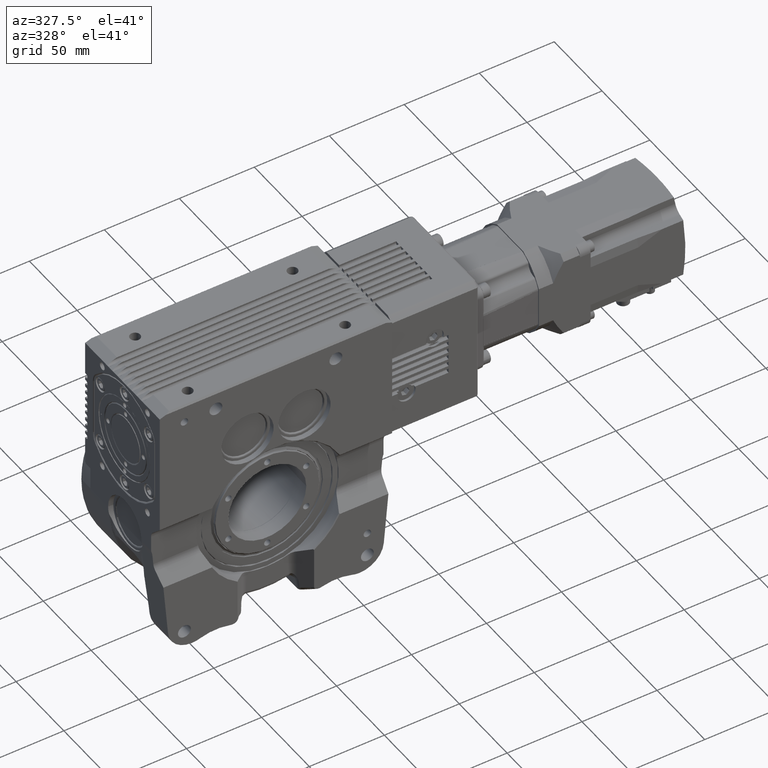
[diagram: clean part render]
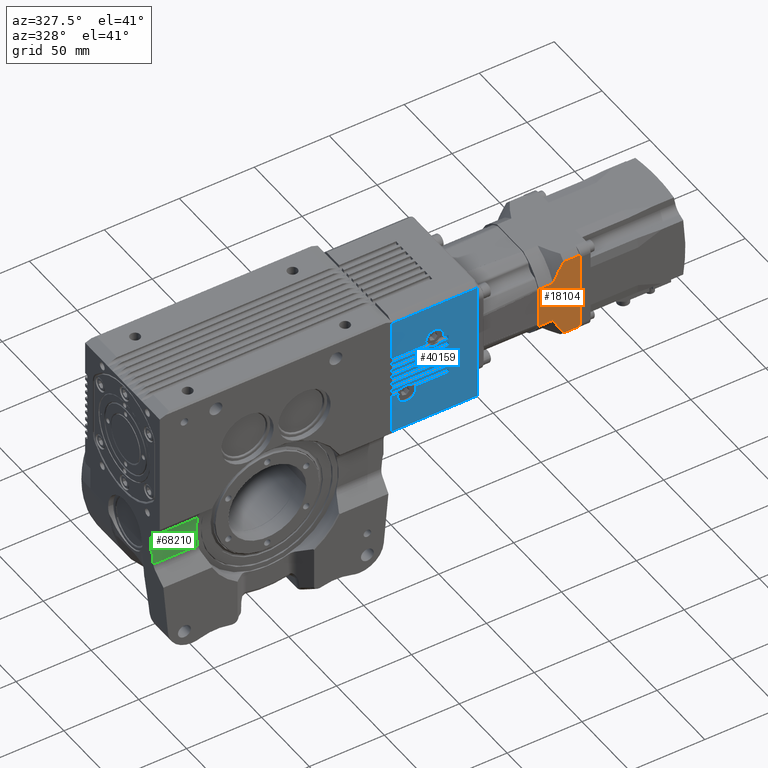
[diagram: same view with three faces highlighted in distinct colors, each labeled with its STEP entity id]
A machine part, auxiliary view with three faces highlighted in distinct colors.
Their STEP definitions:

[orange] entity #18104 — the highlighted planar face has unit normal (0, 1, 0).
#1133 = ORIENTED_EDGE ( 'NONE', *, *, #26673, .F. ) ;
#2421 = CARTESIAN_POINT ( 'NONE',  ( -30.00000000000002132, -25.94822115080963698, -71.33549079599345077 ) ) ;
#3106 = CARTESIAN_POINT ( 'NONE',  ( -30.00000000000001776, -26.45751311064589117, -36.00000000000001421 ) ) ;
#3815 = CARTESIAN_POINT ( 'NONE',  ( -30.00000000000002132, -18.15558045679548371, -55.52238291668759018 ) ) ;
#7841 = CARTESIAN_POINT ( 'NONE',  ( -30.00000000000001776, 1.040834085586084257E-14, -71.50000000000002842 ) ) ;
#8135 = VERTEX_POINT ( 'NONE', #29752 ) ;
#8191 = CARTESIAN_POINT ( 'NONE',  ( -30.00000000000002842, -26.20227501835695705, -71.16882412932679358 ) ) ;
#8363 = LINE ( 'NONE', #65437, #53653 ) ;
#9937 = CARTESIAN_POINT ( 'NONE',  ( -30.00000000000001776, -29.99999999999998934, -44.00000000000000000 ) ) ;
#12159 = CARTESIAN_POINT ( 'NONE',  ( -30.00000000000001776, -13.74772708486742090, -53.50000000000000000 ) ) ;
#12429 = ORIENTED_EDGE ( 'NONE', *, *, #13323, .F. ) ;
#12551 = CARTESIAN_POINT ( 'NONE',  ( -30.00000000000001776, -13.74772708486742090, -44.00000000000000000 ) ) ;
#12579 = CARTESIAN_POINT ( 'NONE',  ( -30.00000000000001776, -26.45751311064589117, -60.50000000000000000 ) ) ;
#12589 = FACE_OUTER_BOUND ( 'NONE', #17058, .T. ) ;
#12682 = VERTEX_POINT ( 'NONE', #35809 ) ;
#13323 = EDGE_CURVE ( 'NONE', #78190, #59667, #59394, .T. ) ;
#14143 = EDGE_CURVE ( 'NONE', #12682, #61910, #64954, .T. ) ;
#14295 = CARTESIAN_POINT ( 'NONE',  ( -30.00000000000002132, -26.45751311064588407, -71.00000000000002842 ) ) ;
#14460 = ORIENTED_EDGE ( 'NONE', *, *, #31605, .F. ) ;
#15219 = ORIENTED_EDGE ( 'NONE', *, *, #50109, .F. ) ;
#17058 = EDGE_LOOP ( 'NONE', ( #12429, #80618, #64923, #54620, #15219, #1133, #14460, #50104, #39897, #53083 ) ) ;
#17101 = VECTOR ( 'NONE', #72103, 1000.000000000000000 ) ;
#17258 = CARTESIAN_POINT ( 'NONE',  ( -30.00000000000002842, 26.20227501835697481, -71.16882412932677937 ) ) ;
#18104 = ADVANCED_FACE ( 'NONE', ( #12589 ), #37646, .F. ) ;
#19742 = VECTOR ( 'NONE', #34983, 1000.000000000000000 ) ;
#21048 = DIRECTION ( 'NONE',  ( -0.000000000000000000, -0.000000000000000000, 1.000000000000000000 ) ) ;
#21459 = EDGE_CURVE ( 'NONE', #56466, #21657, #35988, .T. ) ;
#21657 = VERTEX_POINT ( 'NONE', #12159 ) ;
#22382 = EDGE_CURVE ( 'NONE', #56934, #56466, #41149, .T. ) ;
#23104 = B_SPLINE_CURVE_WITH_KNOTS ( 'NONE', 3,
 ( #69049, #37003, #17258, #67831 ),
 .UNSPECIFIED., .F., .F.,
 ( 4, 4 ),
 ( 0.000000000000000000, 1.000000000000000000 ),
 .UNSPECIFIED. ) ;
#23274 = CARTESIAN_POINT ( 'NONE',  ( -30.00000000000001776, -29.99999999999998934, -36.00000000000001421 ) ) ;
#24701 = CARTESIAN_POINT ( 'NONE',  ( -30.00000000000001421, -25.69533031505918075, -71.50000000000001421 ) ) ;
#26511 = DIRECTION ( 'NONE',  ( 1.000000000000000000, -0.000000000000000000, 0.000000000000000000 ) ) ;
#26673 = EDGE_CURVE ( 'NONE', #72336, #8135, #45202, .T. ) ;
#28845 = CARTESIAN_POINT ( 'NONE',  ( -30.00000000000001421, -22.37609475627537137, -57.88491433695852351 ) ) ;
#28851 = CARTESIAN_POINT ( 'NONE',  ( -30.00000000000001776, 26.45751311064591604, -36.00000000000001421 ) ) ;
#29706 = CARTESIAN_POINT ( 'NONE',  ( -30.00000000000001776, 26.45751311064591249, -60.50000000000000000 ) ) ;
#29752 = CARTESIAN_POINT ( 'NONE',  ( -30.00000000000001776, 13.74772708486744399, -53.50000000000000000 ) ) ;
#31605 = EDGE_CURVE ( 'NONE', #79259, #72336, #60922, .T. ) ;
#33217 = B_SPLINE_CURVE_WITH_KNOTS ( 'NONE', 3,
 ( #14295, #8191, #2421, #24701 ),
 .UNSPECIFIED., .F., .F.,
 ( 4, 4 ),
 ( 0.000000000000000000, 1.000000000000000000 ),
 .UNSPECIFIED. ) ;
#34115 = CARTESIAN_POINT ( 'NONE',  ( -30.00000000000002132, 24.43386382049441607, -59.16148180936169609 ) ) ;
#34983 = DIRECTION ( 'NONE',  ( -0.000000000000000000, -1.000000000000000000, -0.000000000000000000 ) ) ;
#35015 = CARTESIAN_POINT ( 'NONE',  ( -30.00000000000001776, -13.74772708486742090, -53.50000000000000000 ) ) ;
#35593 = CARTESIAN_POINT ( 'NONE',  ( -30.00000000000001776, -13.74772708486742623, -36.00000000000001421 ) ) ;
#35809 = CARTESIAN_POINT ( 'NONE',  ( -30.00000000000001421, -25.69533031505918075, -71.50000000000001421 ) ) ;
#35988 = LINE ( 'NONE', #35593, #56767 ) ;
#37003 = CARTESIAN_POINT ( 'NONE',  ( -30.00000000000002487, 25.94822115080965830, -71.33549079599345077 ) ) ;
#37353 = EDGE_CURVE ( 'NONE', #21657, #78190, #38780, .T. ) ;
#37646 = PLANE ( 'NONE',  #50699 ) ;
#38530 = CARTESIAN_POINT ( 'NONE',  ( -30.00000000000001776, 13.74772708486744044, -44.00000000000000000 ) ) ;
#38780 = B_SPLINE_CURVE_WITH_KNOTS ( 'NONE', 3,
 ( #35015, #60100, #3815, #28845, #53946, #47772 ),
 .UNSPECIFIED., .F., .F.,
 ( 4, 2, 4 ),
 ( 1.110764993427085326E-17, 0.007254975203628777347, 0.01450995040725754255 ),
 .UNSPECIFIED. ) ;
#39897 = ORIENTED_EDGE ( 'NONE', *, *, #14143, .F. ) ;
#40282 = CARTESIAN_POINT ( 'NONE',  ( -30.00000000000002132, 15.99333331272853975, -54.43551459274888060 ) ) ;
#41149 = LINE ( 'NONE', #9937, #19742 ) ;
#45202 = B_SPLINE_CURVE_WITH_KNOTS ( 'NONE', 3,
 ( #72757, #34115, #53049, #78925, #40282, #53852 ),
 .UNSPECIFIED., .F., .F.,
 ( 4, 2, 4 ),
 ( 0.000000000000000000, 0.007254975203628776480, 0.01450995040725755296 ),
 .UNSPECIFIED. ) ;
#46045 = DIRECTION ( 'NONE',  ( 0.000000000000000000, 1.000000000000000000, 0.000000000000000000 ) ) ;
#46384 = EDGE_CURVE ( 'NONE', #59667, #12682, #33217, .T. ) ;
#47772 = CARTESIAN_POINT ( 'NONE',  ( -30.00000000000001776, -26.45751311064589117, -60.50000000000000000 ) ) ;
#48993 = DIRECTION ( 'NONE',  ( -0.000000000000000000, -0.000000000000000000, 1.000000000000000000 ) ) ;
#50104 = ORIENTED_EDGE ( 'NONE', *, *, #55673, .F. ) ;
#50109 = EDGE_CURVE ( 'NONE', #8135, #56934, #8363, .T. ) ;
#50699 = AXIS2_PLACEMENT_3D ( 'NONE', #23274, #26511, #75854 ) ;
#50987 = CARTESIAN_POINT ( 'NONE',  ( -30.00000000000002132, -26.45751311064588407, -71.00000000000002842 ) ) ;
#51029 = CARTESIAN_POINT ( 'NONE',  ( -30.00000000000002132, 26.45751311064591960, -71.00000000000002842 ) ) ;
#53049 = CARTESIAN_POINT ( 'NONE',  ( -30.00000000000002132, 22.37609475627537492, -57.88491433695854482 ) ) ;
#53083 = ORIENTED_EDGE ( 'NONE', *, *, #46384, .F. ) ;
#53653 = VECTOR ( 'NONE', #21048, 1000.000000000000000 ) ;
#53852 = CARTESIAN_POINT ( 'NONE',  ( -30.00000000000001776, 13.74772708486744399, -53.50000000000000000 ) ) ;
#53946 = CARTESIAN_POINT ( 'NONE',  ( -30.00000000000002132, -24.43386382049439476, -59.16148180936168899 ) ) ;
#54620 = ORIENTED_EDGE ( 'NONE', *, *, #22382, .F. ) ;
#55516 = CARTESIAN_POINT ( 'NONE',  ( -30.00000000000001421, 25.69533031505921983, -71.50000000000001421 ) ) ;
#55673 = EDGE_CURVE ( 'NONE', #61910, #79259, #23104, .T. ) ;
#56466 = VERTEX_POINT ( 'NONE', #12551 ) ;
#56767 = VECTOR ( 'NONE', #72596, 1000.000000000000000 ) ;
#56934 = VERTEX_POINT ( 'NONE', #38530 ) ;
#59394 = LINE ( 'NONE', #3106, #17101 ) ;
#59667 = VERTEX_POINT ( 'NONE', #50987 ) ;
#60100 = CARTESIAN_POINT ( 'NONE',  ( -30.00000000000000355, -15.99333331272853265, -54.43551459274887350 ) ) ;
#60922 = LINE ( 'NONE', #28851, #80943 ) ;
#61910 = VERTEX_POINT ( 'NONE', #55516 ) ;
#64923 = ORIENTED_EDGE ( 'NONE', *, *, #21459, .F. ) ;
#64954 = LINE ( 'NONE', #7841, #67481 ) ;
#65437 = CARTESIAN_POINT ( 'NONE',  ( -30.00000000000001776, 13.74772708486744399, -36.00000000000001421 ) ) ;
#67481 = VECTOR ( 'NONE', #46045, 1000.000000000000000 ) ;
#67831 = CARTESIAN_POINT ( 'NONE',  ( -30.00000000000002132, 26.45751311064591960, -71.00000000000002842 ) ) ;
#69049 = CARTESIAN_POINT ( 'NONE',  ( -30.00000000000001421, 25.69533031505921983, -71.50000000000001421 ) ) ;
#72103 = DIRECTION ( 'NONE',  ( 0.000000000000000000, 0.000000000000000000, -1.000000000000000000 ) ) ;
#72336 = VERTEX_POINT ( 'NONE', #29706 ) ;
#72596 = DIRECTION ( 'NONE',  ( 0.000000000000000000, 0.000000000000000000, -1.000000000000000000 ) ) ;
#72757 = CARTESIAN_POINT ( 'NONE',  ( -30.00000000000001776, 26.45751311064591249, -60.50000000000000000 ) ) ;
#75854 = DIRECTION ( 'NONE',  ( 0.000000000000000000, 0.000000000000000000, -1.000000000000000000 ) ) ;
#78190 = VERTEX_POINT ( 'NONE', #12579 ) ;
#78925 = CARTESIAN_POINT ( 'NONE',  ( -30.00000000000001421, 18.15558045679548371, -55.52238291668756887 ) ) ;
#79259 = VERTEX_POINT ( 'NONE', #51029 ) ;
#80618 = ORIENTED_EDGE ( 'NONE', *, *, #37353, .F. ) ;
#80943 = VECTOR ( 'NONE', #48993, 1000.000000000000000 ) ;

[blue] entity #40159 — the highlighted planar face has unit normal (-0, -1, -0).
#177 = EDGE_CURVE ( 'NONE', #80885, #73683, #64540, .T. ) ;
#434 = LINE ( 'NONE', #44770, #13211 ) ;
#594 = VERTEX_POINT ( 'NONE', #26601 ) ;
#670 = EDGE_CURVE ( 'NONE', #38386, #75572, #58671, .T. ) ;
#885 = EDGE_CURVE ( 'NONE', #75837, #3654, #26539, .T. ) ;
#966 = DIRECTION ( 'NONE',  ( 0.000000000000000000, 7.975740119433600271E-17, -1.000000000000000000 ) ) ;
#1026 = DIRECTION ( 'NONE',  ( -1.000000000000000000, 0.000000000000000000, 0.000000000000000000 ) ) ;
#1082 = DIRECTION ( 'NONE',  ( 1.000000000000000000, -2.782884840501479875E-17, 0.000000000000000000 ) ) ;
#1223 = DIRECTION ( 'NONE',  ( -4.439113254030250169E-33, -1.595148023886720054E-16, 1.000000000000000000 ) ) ;
#1350 = ORIENTED_EDGE ( 'NONE', *, *, #65486, .F. ) ;
#1500 = CARTESIAN_POINT ( 'NONE',  ( -1.001838542580531843E-15, -36.00000000000000000, 4.000000000000000000 ) ) ;
#1775 = VECTOR ( 'NONE', #18133, 1000.000000000000000 ) ;
#2064 = EDGE_CURVE ( 'NONE', #27570, #75572, #6294, .T. ) ;
#2137 = VECTOR ( 'NONE', #1082, 1000.000000000000000 ) ;
#2237 = DIRECTION ( 'NONE',  ( -1.000000000000000000, 2.782884840501479875E-17, 0.000000000000000000 ) ) ;
#2456 = LINE ( 'NONE', #9005, #69904 ) ;
#2832 = VECTOR ( 'NONE', #28714, 1000.000000000000000 ) ;
#2875 = DIRECTION ( 'NONE',  ( 0.000000000000000000, 7.975740119433600271E-17, -1.000000000000000000 ) ) ;
#3627 = EDGE_CURVE ( 'NONE', #68537, #594, #75636, .T. ) ;
#3654 = VERTEX_POINT ( 'NONE', #18516 ) ;
#3881 = AXIS2_PLACEMENT_3D ( 'NONE', #38076, #56174, #24517 ) ;
#4070 = DIRECTION ( 'NONE',  ( -4.439113254030250169E-33, -1.595148023886720054E-16, 1.000000000000000000 ) ) ;
#4197 = ORIENTED_EDGE ( 'NONE', *, *, #2064, .T. ) ;
#4286 = ORIENTED_EDGE ( 'NONE', *, *, #10391, .F. ) ;
#4497 = LINE ( 'NONE', #9826, #47286 ) ;
#4815 = DIRECTION ( 'NONE',  ( -4.439113254030250169E-33, -1.595148023886720054E-16, 1.000000000000000000 ) ) ;
#4909 = ORIENTED_EDGE ( 'NONE', *, *, #3627, .T. ) ;
#5739 = CARTESIAN_POINT ( 'NONE',  ( 38.00000000000000000, -36.00000000000000000, 14.00000000000000000 ) ) ;
#5781 = CARTESIAN_POINT ( 'NONE',  ( -1.001838542580531843E-15, -36.00000000000000000, 43.50000000000000000 ) ) ;
#5793 = VERTEX_POINT ( 'NONE', #27275 ) ;
#5811 = LINE ( 'NONE', #69059, #10837 ) ;
#5870 = LINE ( 'NONE', #80648, #1775 ) ;
#6037 = ORIENTED_EDGE ( 'NONE', *, *, #51653, .T. ) ;
#6132 = CARTESIAN_POINT ( 'NONE',  ( 15.65685424949235127, -36.00000000000000000, -14.00000000000000000 ) ) ;
#6176 = CARTESIAN_POINT ( 'NONE',  ( -154.2624153836570144, -36.00000000000000000, 14.00000000000000000 ) ) ;
#6294 = LINE ( 'NONE', #6711, #50985 ) ;
#6372 = VECTOR ( 'NONE', #19875, 1000.000000000000000 ) ;
#6435 = DIRECTION ( 'NONE',  ( 1.000000000000000000, -2.782884840501479875E-17, 0.000000000000000000 ) ) ;
#6711 = CARTESIAN_POINT ( 'NONE',  ( -9.285310410370950507, -36.00000000000000000, 40.24922359499620228 ) ) ;
#6737 = ORIENTED_EDGE ( 'NONE', *, *, #9521, .T. ) ;
#6796 = CARTESIAN_POINT ( 'NONE',  ( -1.001838542580531843E-15, -36.00000000000000000, 43.50000000000000000 ) ) ;
#6966 = CARTESIAN_POINT ( 'NONE',  ( 38.00000000000000000, -36.00000000000000000, 1.000000000000000000 ) ) ;
#7369 = ORIENTED_EDGE ( 'NONE', *, *, #25311, .T. ) ;
#7569 = VECTOR ( 'NONE', #966, 1000.000000000000000 ) ;
#7701 = DIRECTION ( 'NONE',  ( 0.000000000000000000, 1.000000000000000000, 6.162975822039160204E-33 ) ) ;
#7737 = VERTEX_POINT ( 'NONE', #5739 ) ;
#7899 = LINE ( 'NONE', #8711, #17138 ) ;
#8091 = EDGE_CURVE ( 'NONE', #3654, #64853, #16981, .T. ) ;
#8114 = ORIENTED_EDGE ( 'NONE', *, *, #39611, .T. ) ;
#8204 = VERTEX_POINT ( 'NONE', #9501 ) ;
#8711 = CARTESIAN_POINT ( 'NONE',  ( -154.2624153836570144, -36.00000000000000000, -6.000000000000000000 ) ) ;
#8892 = CARTESIAN_POINT ( 'NONE',  ( -154.2624153836570144, -36.00000000000000000, 43.50000000000000000 ) ) ;
#9005 = CARTESIAN_POINT ( 'NONE',  ( 38.00000000000000000, -36.00000000000000000, -5.423503281214849022E-15 ) ) ;
#9251 = ORIENTED_EDGE ( 'NONE', *, *, #30407, .T. ) ;
#9305 = DIRECTION ( 'NONE',  ( -4.439113254030250169E-33, -1.595148023886720054E-16, 1.000000000000000000 ) ) ;
#9501 = CARTESIAN_POINT ( 'NONE',  ( -1.001838542580531843E-15, -36.00000000000000000, -14.00000000000000000 ) ) ;
#9521 = EDGE_CURVE ( 'NONE', #17342, #37548, #33832, .T. ) ;
#9696 = CARTESIAN_POINT ( 'NONE',  ( 4.000000000000000000, -36.00000000000000000, -16.00000000000000000 ) ) ;
#9801 = ORIENTED_EDGE ( 'NONE', *, *, #19865, .F. ) ;
#9826 = CARTESIAN_POINT ( 'NONE',  ( -154.2624153836570144, -36.00000000000000000, -11.00000000000000000 ) ) ;
#9847 = CARTESIAN_POINT ( 'NONE',  ( -154.2624153836570144, -36.00000000000000000, 11.00000000000000000 ) ) ;
#9933 = DIRECTION ( 'NONE',  ( 0.000000000000000000, 7.975740119433600271E-17, -1.000000000000000000 ) ) ;
#10391 = EDGE_CURVE ( 'NONE', #68537, #32971, #71857, .T. ) ;
#10721 = CARTESIAN_POINT ( 'NONE',  ( 23.14314575050759970, -36.00000000000000000, 14.00000000000000000 ) ) ;
#10837 = VECTOR ( 'NONE', #19301, 1000.000000000000000 ) ;
#11097 = CARTESIAN_POINT ( 'NONE',  ( 38.00000000000000000, -36.00000000000000000, -5.423503281214849022E-15 ) ) ;
#11258 = DIRECTION ( 'NONE',  ( 0.000000000000000000, 7.975740119433600271E-17, -1.000000000000000000 ) ) ;
#11530 = ORIENTED_EDGE ( 'NONE', *, *, #67047, .T. ) ;
#11555 = EDGE_CURVE ( 'NONE', #12663, #75837, #4497, .T. ) ;
#11698 = VECTOR ( 'NONE', #13967, 1000.000000000000000 ) ;
#11856 = CARTESIAN_POINT ( 'NONE',  ( 38.00000000000000000, -36.00000000000000000, -9.000000000000000000 ) ) ;
#11906 = LINE ( 'NONE', #5781, #41193 ) ;
#12002 = CIRCLE ( 'NONE', #57938, 5.999999999999998224 ) ;
#12027 = DIRECTION ( 'NONE',  ( 0.000000000000000000, 1.000000000000000000, 6.162975822039160204E-33 ) ) ;
#12473 = LINE ( 'NONE', #63809, #7569 ) ;
#12663 = VERTEX_POINT ( 'NONE', #22233 ) ;
#12835 = VECTOR ( 'NONE', #73691, 1000.000000000000000 ) ;
#13167 = VERTEX_POINT ( 'NONE', #1500 ) ;
#13211 = VECTOR ( 'NONE', #1223, 1000.000000000000000 ) ;
#13623 = VECTOR ( 'NONE', #9933, 1000.000000000000000 ) ;
#13967 = DIRECTION ( 'NONE',  ( 1.000000000000000000, -2.782884840501479875E-17, 0.000000000000000000 ) ) ;
#14234 = DIRECTION ( 'NONE',  ( -1.000000000000000000, 0.000000000000000000, 0.000000000000000000 ) ) ;
#14375 = VERTEX_POINT ( 'NONE', #6966 ) ;
#14931 = LINE ( 'NONE', #65472, #70973 ) ;
#15090 = CARTESIAN_POINT ( 'NONE',  ( -1.001838542580531843E-15, -36.00000000000000000, 43.50000000000000000 ) ) ;
#15479 = CARTESIAN_POINT ( 'NONE',  ( -1.001838542580531843E-15, -36.00000000000000000, -6.000000000000000000 ) ) ;
#15818 = AXIS2_PLACEMENT_3D ( 'NONE', #77413, #26449, #1026 ) ;
#16503 = CARTESIAN_POINT ( 'NONE',  ( -154.2624153836570144, -36.00000000000000000, -4.000000000000000000 ) ) ;
#16679 = VERTEX_POINT ( 'NONE', #25792 ) ;
#16981 = LINE ( 'NONE', #42074, #47300 ) ;
#17012 = AXIS2_PLACEMENT_3D ( 'NONE', #42428, #12027, #55590 ) ;
#17046 = CARTESIAN_POINT ( 'NONE',  ( -1.001838542580531843E-15, -36.00000000000000000, 43.50000000000000000 ) ) ;
#17138 = VECTOR ( 'NONE', #38703, 1000.000000000000000 ) ;
#17342 = VERTEX_POINT ( 'NONE', #61809 ) ;
#17549 = DIRECTION ( 'NONE',  ( -1.000000000000000000, 2.782884840501479875E-17, 0.000000000000000000 ) ) ;
#18133 = DIRECTION ( 'NONE',  ( -1.000000000000000000, 2.782884840501479875E-17, 0.000000000000000000 ) ) ;
#18204 = EDGE_CURVE ( 'NONE', #62534, #38029, #39250, .T. ) ;
#18473 = DIRECTION ( 'NONE',  ( 1.000000000000000000, -2.782884840501479875E-17, 0.000000000000000000 ) ) ;
#18516 = CARTESIAN_POINT ( 'NONE',  ( 13.31662479035538027, -36.00000000000000000, -11.00000000000000000 ) ) ;
#18810 = CARTESIAN_POINT ( 'NONE',  ( 38.00000000000000000, -36.00000000000000000, 9.000000000000000000 ) ) ;
#19184 = CARTESIAN_POINT ( 'NONE',  ( -1.001838542580531843E-15, -36.00000000000000000, 9.000000000000000000 ) ) ;
#19301 = DIRECTION ( 'NONE',  ( 0.000000000000000000, 7.975740119433600271E-17, -1.000000000000000000 ) ) ;
#19313 = CARTESIAN_POINT ( 'NONE',  ( -154.2624153836570144, -36.00000000000000000, -1.000000000000000000 ) ) ;
#19865 = EDGE_CURVE ( 'NONE', #63896, #49088, #434, .T. ) ;
#19875 = DIRECTION ( 'NONE',  ( -1.000000000000000000, 2.782884840501479875E-17, 0.000000000000000000 ) ) ;
#20745 = CARTESIAN_POINT ( 'NONE',  ( -9.285310410370950507, -36.00000000000000000, -40.24922359499624491 ) ) ;
#21027 = VECTOR ( 'NONE', #24665, 1000.000000000000000 ) ;
#21069 = ORIENTED_EDGE ( 'NONE', *, *, #23880, .T. ) ;
#21430 = VERTEX_POINT ( 'NONE', #47937 ) ;
#21882 = DIRECTION ( 'NONE',  ( -1.000000000000000000, 0.000000000000000000, 0.000000000000000000 ) ) ;
#22202 = VECTOR ( 'NONE', #4070, 1000.000000000000000 ) ;
#22233 = CARTESIAN_POINT ( 'NONE',  ( -1.001838542580531843E-15, -36.00000000000000000, -11.00000000000000000 ) ) ;
#22574 = EDGE_CURVE ( 'NONE', #38386, #25413, #32864, .T. ) ;
#22603 = DIRECTION ( 'NONE',  ( 0.000000000000000000, 7.975740119433600271E-17, -1.000000000000000000 ) ) ;
#23176 = VECTOR ( 'NONE', #78584, 1000.000000000000000 ) ;
#23298 = VERTEX_POINT ( 'NONE', #62738 ) ;
#23544 = CIRCLE ( 'NONE', #3881, 5.999999999999998224 ) ;
#23867 = VERTEX_POINT ( 'NONE', #40005 ) ;
#23880 = EDGE_CURVE ( 'NONE', #74524, #54792, #14931, .T. ) ;
#24517 = DIRECTION ( 'NONE',  ( -1.000000000000000000, 0.000000000000000000, 0.000000000000000000 ) ) ;
#24665 = DIRECTION ( 'NONE',  ( 1.000000000000000000, -2.782884840501479875E-17, 0.000000000000000000 ) ) ;
#24696 = VERTEX_POINT ( 'NONE', #9696 ) ;
#24840 = AXIS2_PLACEMENT_3D ( 'NONE', #8892, #75886, #72970 ) ;
#24884 = CARTESIAN_POINT ( 'NONE',  ( -154.2624153836570144, -36.00000000000000000, 4.000000000000000000 ) ) ;
#25001 = ORIENTED_EDGE ( 'NONE', *, *, #18204, .T. ) ;
#25311 = EDGE_CURVE ( 'NONE', #74535, #23867, #69850, .T. ) ;
#25413 = VERTEX_POINT ( 'NONE', #10721 ) ;
#25638 = EDGE_CURVE ( 'NONE', #16679, #74524, #2456, .T. ) ;
#25792 = CARTESIAN_POINT ( 'NONE',  ( 38.00000000000000000, -36.00000000000000000, -6.000000000000000000 ) ) ;
#25883 = ORIENTED_EDGE ( 'NONE', *, *, #59158, .T. ) ;
#26370 = CARTESIAN_POINT ( 'NONE',  ( 34.45685424949240172, -36.00000000000000000, 14.00000000000000000 ) ) ;
#26418 = VECTOR ( 'NONE', #58705, 1000.000000000000000 ) ;
#26428 = EDGE_CURVE ( 'NONE', #5793, #74535, #5870, .T. ) ;
#26449 = DIRECTION ( 'NONE',  ( 0.000000000000000000, 1.000000000000000000, 6.162975822039160204E-33 ) ) ;
#26501 = CARTESIAN_POINT ( 'NONE',  ( 10.00000000000000000, -36.00000000000000000, -16.00000000000000000 ) ) ;
#26539 = CIRCLE ( 'NONE', #72516, 6.000000000000000000 ) ;
#26601 = CARTESIAN_POINT ( 'NONE',  ( 38.00000000000000000, -36.00000000000000000, -1.000000000000000000 ) ) ;
#27275 = CARTESIAN_POINT ( 'NONE',  ( 38.00000000000000000, -36.00000000000000000, -14.00000000000000000 ) ) ;
#27517 = ORIENTED_EDGE ( 'NONE', *, *, #67156, .F. ) ;
#27570 = VERTEX_POINT ( 'NONE', #52439 ) ;
#27731 = DIRECTION ( 'NONE',  ( -1.000000000000000000, 0.000000000000000000, 0.000000000000000000 ) ) ;
#28289 = CARTESIAN_POINT ( 'NONE',  ( -1.001838542580531843E-15, -36.00000000000000000, 43.50000000000000000 ) ) ;
#28714 = DIRECTION ( 'NONE',  ( -1.000000000000000000, 2.782884840501479875E-17, 0.000000000000000000 ) ) ;
#29004 = LINE ( 'NONE', #17046, #69322 ) ;
#29348 = CARTESIAN_POINT ( 'NONE',  ( 38.00000000000000000, -36.00000000000000000, -5.423503281214849022E-15 ) ) ;
#29374 = CARTESIAN_POINT ( 'NONE',  ( 38.00000000000000000, -36.00000000000000000, 11.00000000000000000 ) ) ;
#29835 = ORIENTED_EDGE ( 'NONE', *, *, #48795, .T. ) ;
#30032 = CARTESIAN_POINT ( 'NONE',  ( 38.00000000000000000, -36.00000000000000000, -5.423503281214849022E-15 ) ) ;
#30407 = EDGE_CURVE ( 'NONE', #66723, #49088, #41174, .T. ) ;
#30596 = CARTESIAN_POINT ( 'NONE',  ( 57.00000000000000000, -36.00000000000000000, -40.24922359499620228 ) ) ;
#30686 = ORIENTED_EDGE ( 'NONE', *, *, #31864, .T. ) ;
#31204 = LINE ( 'NONE', #6176, #70719 ) ;
#31827 = DIRECTION ( 'NONE',  ( -4.439113254030250169E-33, -1.595148023886720054E-16, 1.000000000000000000 ) ) ;
#31864 = EDGE_CURVE ( 'NONE', #14375, #32971, #46860, .T. ) ;
#32864 = LINE ( 'NONE', #69875, #11698 ) ;
#32971 = VERTEX_POINT ( 'NONE', #59620 ) ;
#33689 = VECTOR ( 'NONE', #64568, 1000.000000000000000 ) ;
#33832 = LINE ( 'NONE', #44969, #6372 ) ;
#34099 = CIRCLE ( 'NONE', #17012, 5.999999999999998224 ) ;
#34684 = CARTESIAN_POINT ( 'NONE',  ( 10.00000000000000000, -36.00000000000000000, -16.00000000000000000 ) ) ;
#36932 = CARTESIAN_POINT ( 'NONE',  ( 32.11662479035545203, -36.00000000000000000, 11.00000000000000000 ) ) ;
#37360 = LINE ( 'NONE', #63242, #70154 ) ;
#37548 = VERTEX_POINT ( 'NONE', #77274 ) ;
#37649 = AXIS2_PLACEMENT_3D ( 'NONE', #34684, #64736, #40853 ) ;
#37967 = CARTESIAN_POINT ( 'NONE',  ( -1.001838542580531843E-15, -36.00000000000000000, -1.000000000000000000 ) ) ;
#38003 = VERTEX_POINT ( 'NONE', #29374 ) ;
#38029 = VERTEX_POINT ( 'NONE', #30596 ) ;
#38076 = CARTESIAN_POINT ( 'NONE',  ( 28.80000000000000071, -36.00000000000000000, 16.00000000000000000 ) ) ;
#38099 = ORIENTED_EDGE ( 'NONE', *, *, #11555, .T. ) ;
#38386 = VERTEX_POINT ( 'NONE', #60927 ) ;
#38586 = DIRECTION ( 'NONE',  ( -4.439113254030250169E-33, -1.595148023886720054E-16, 1.000000000000000000 ) ) ;
#38703 = DIRECTION ( 'NONE',  ( 1.000000000000000000, -2.782884840501479875E-17, 0.000000000000000000 ) ) ;
#39250 = LINE ( 'NONE', #20745, #2137 ) ;
#39472 = EDGE_CURVE ( 'NONE', #53826, #17342, #42726, .T. ) ;
#39611 = EDGE_CURVE ( 'NONE', #47952, #7737, #31204, .T. ) ;
#40005 = CARTESIAN_POINT ( 'NONE',  ( 16.00000000000000000, -36.00000000000000000, -16.00000000000000000 ) ) ;
#40110 = PLANE ( 'NONE',  #24840 ) ;
#40159 = ADVANCED_FACE ( 'NONE', ( #57801 ), #40110, .T. ) ;
#40639 = VERTEX_POINT ( 'NONE', #19184 ) ;
#40853 = DIRECTION ( 'NONE',  ( -1.000000000000000000, 0.000000000000000000, 0.000000000000000000 ) ) ;
#41174 = LINE ( 'NONE', #16503, #23176 ) ;
#41193 = VECTOR ( 'NONE', #38586, 1000.000000000000000 ) ;
#41640 = CARTESIAN_POINT ( 'NONE',  ( -1.001838542580531843E-15, -36.00000000000000000, 11.00000000000000000 ) ) ;
#42074 = CARTESIAN_POINT ( 'NONE',  ( -154.2624153836570144, -36.00000000000000000, -11.00000000000000000 ) ) ;
#42428 = CARTESIAN_POINT ( 'NONE',  ( 28.80000000000000071, -36.00000000000000000, 16.00000000000000000 ) ) ;
#42726 = LINE ( 'NONE', #11097, #66754 ) ;
#43028 = AXIS2_PLACEMENT_3D ( 'NONE', #44675, #7701, #14234 ) ;
#43222 = ORIENTED_EDGE ( 'NONE', *, *, #45356, .T. ) ;
#44390 = CARTESIAN_POINT ( 'NONE',  ( 25.48337520964459912, -36.00000000000000000, 11.00000000000000000 ) ) ;
#44413 = CARTESIAN_POINT ( 'NONE',  ( -1.001838542580531843E-15, -36.00000000000000000, -4.000000000000000000 ) ) ;
#44675 = CARTESIAN_POINT ( 'NONE',  ( 28.80000000000000071, -36.00000000000000000, 16.00000000000000000 ) ) ;
#44770 = CARTESIAN_POINT ( 'NONE',  ( -1.001838542580531843E-15, -36.00000000000000000, 43.50000000000000000 ) ) ;
#44830 = CARTESIAN_POINT ( 'NONE',  ( 38.00000000000000000, -36.00000000000000000, 4.000000000000000000 ) ) ;
#44969 = CARTESIAN_POINT ( 'NONE',  ( -154.2624153836570144, -36.00000000000000000, 6.000000000000000000 ) ) ;
#44971 = LINE ( 'NONE', #6796, #53835 ) ;
#45341 = ORIENTED_EDGE ( 'NONE', *, *, #51407, .F. ) ;
#45356 = EDGE_CURVE ( 'NONE', #40639, #53826, #37360, .T. ) ;
#46860 = LINE ( 'NONE', #52640, #33689 ) ;
#47286 = VECTOR ( 'NONE', #78864, 1000.000000000000000 ) ;
#47292 = ORIENTED_EDGE ( 'NONE', *, *, #69083, .T. ) ;
#47300 = VECTOR ( 'NONE', #79890, 1000.000000000000000 ) ;
#47937 = CARTESIAN_POINT ( 'NONE',  ( 34.79999999999999716, -36.00000000000000000, 16.00000000000000000 ) ) ;
#47952 = VERTEX_POINT ( 'NONE', #26370 ) ;
#47967 = ORIENTED_EDGE ( 'NONE', *, *, #177, .T. ) ;
#48571 = EDGE_CURVE ( 'NONE', #23867, #24696, #52083, .T. ) ;
#48795 = EDGE_CURVE ( 'NONE', #594, #66723, #12473, .T. ) ;
#48809 = CARTESIAN_POINT ( 'NONE',  ( 38.00000000000000000, -36.00000000000000000, -11.00000000000000000 ) ) ;
#48820 = CARTESIAN_POINT ( 'NONE',  ( -154.2624153836570144, -36.00000000000000000, -14.00000000000000000 ) ) ;
#49021 = CARTESIAN_POINT ( 'NONE',  ( 57.00000000000000000, -36.00000000000000000, 40.24922359499620228 ) ) ;
#49088 = VERTEX_POINT ( 'NONE', #44413 ) ;
#49650 = ORIENTED_EDGE ( 'NONE', *, *, #73999, .T. ) ;
#49869 = EDGE_CURVE ( 'NONE', #7737, #38003, #67573, .T. ) ;
#50883 = ORIENTED_EDGE ( 'NONE', *, *, #69474, .T. ) ;
#50895 = DIRECTION ( 'NONE',  ( 1.000000000000000000, -2.782884840501479875E-17, 0.000000000000000000 ) ) ;
#50966 = ORIENTED_EDGE ( 'NONE', *, *, #885, .T. ) ;
#50985 = VECTOR ( 'NONE', #56819, 1000.000000000000000 ) ;
#51328 = CARTESIAN_POINT ( 'NONE',  ( -154.2624153836570144, -36.00000000000000000, 11.00000000000000000 ) ) ;
#51407 = EDGE_CURVE ( 'NONE', #12663, #54792, #44971, .T. ) ;
#51431 = AXIS2_PLACEMENT_3D ( 'NONE', #72375, #53878, #61254 ) ;
#51653 = EDGE_CURVE ( 'NONE', #77685, #80885, #34099, .T. ) ;
#51753 = CARTESIAN_POINT ( 'NONE',  ( 38.00000000000000000, -36.00000000000000000, -4.000000000000000000 ) ) ;
#51994 = DIRECTION ( 'NONE',  ( 0.000000000000000000, 1.000000000000000000, 6.162975822039160204E-33 ) ) ;
#52083 = CIRCLE ( 'NONE', #37649, 6.000000000000000000 ) ;
#52223 = ORIENTED_EDGE ( 'NONE', *, *, #26428, .T. ) ;
#52439 = CARTESIAN_POINT ( 'NONE',  ( 57.00000000000000000, -36.00000000000000000, 40.24922359499620228 ) ) ;
#52640 = CARTESIAN_POINT ( 'NONE',  ( -154.2624153836570144, -36.00000000000000000, 1.000000000000000000 ) ) ;
#53623 = VERTEX_POINT ( 'NONE', #55824 ) ;
#53826 = VERTEX_POINT ( 'NONE', #18810 ) ;
#53835 = VECTOR ( 'NONE', #31827, 1000.000000000000000 ) ;
#53878 = DIRECTION ( 'NONE',  ( 0.000000000000000000, 1.000000000000000000, 6.162975822039160204E-33 ) ) ;
#54255 = EDGE_CURVE ( 'NONE', #23298, #21430, #12002, .T. ) ;
#54769 = DIRECTION ( 'NONE',  ( 0.000000000000000000, 1.000000000000000000, 6.162975822039160204E-33 ) ) ;
#54792 = VERTEX_POINT ( 'NONE', #55496 ) ;
#55199 = CIRCLE ( 'NONE', #15818, 6.000000000000000000 ) ;
#55496 = CARTESIAN_POINT ( 'NONE',  ( -1.001838542580531843E-15, -36.00000000000000000, -9.000000000000000000 ) ) ;
#55590 = DIRECTION ( 'NONE',  ( -1.000000000000000000, 0.000000000000000000, 0.000000000000000000 ) ) ;
#55824 = CARTESIAN_POINT ( 'NONE',  ( 4.343145750507614977, -36.00000000000000000, -14.00000000000000000 ) ) ;
#56174 = DIRECTION ( 'NONE',  ( 0.000000000000000000, 1.000000000000000000, 6.162975822039160204E-33 ) ) ;
#56819 = DIRECTION ( 'NONE',  ( -1.000000000000000000, 2.782884840501479875E-17, 0.000000000000000000 ) ) ;
#57429 = CARTESIAN_POINT ( 'NONE',  ( -1.001838542580531843E-15, -36.00000000000000000, 43.50000000000000000 ) ) ;
#57801 = FACE_OUTER_BOUND ( 'NONE', #67636, .T. ) ;
#57938 = AXIS2_PLACEMENT_3D ( 'NONE', #78215, #54769, #21882 ) ;
#58671 = LINE ( 'NONE', #15090, #67201 ) ;
#58705 = DIRECTION ( 'NONE',  ( -1.000000000000000000, 2.782884840501479875E-17, 0.000000000000000000 ) ) ;
#59158 = EDGE_CURVE ( 'NONE', #13167, #59613, #76662, .T. ) ;
#59613 = VERTEX_POINT ( 'NONE', #44830 ) ;
#59620 = CARTESIAN_POINT ( 'NONE',  ( -1.001838542580531843E-15, -36.00000000000000000, 1.000000000000000000 ) ) ;
#60811 = ORIENTED_EDGE ( 'NONE', *, *, #68177, .T. ) ;
#60883 = LINE ( 'NONE', #30032, #13623 ) ;
#60927 = CARTESIAN_POINT ( 'NONE',  ( -1.001838542580531843E-15, -36.00000000000000000, 14.00000000000000000 ) ) ;
#61038 = VECTOR ( 'NONE', #62781, 1000.000000000000000 ) ;
#61142 = LINE ( 'NONE', #48820, #76184 ) ;
#61254 = DIRECTION ( 'NONE',  ( -1.000000000000000000, 0.000000000000000000, 0.000000000000000000 ) ) ;
#61454 = VECTOR ( 'NONE', #11258, 1000.000000000000000 ) ;
#61809 = CARTESIAN_POINT ( 'NONE',  ( 38.00000000000000000, -36.00000000000000000, 6.000000000000000000 ) ) ;
#62406 = ORIENTED_EDGE ( 'NONE', *, *, #69911, .T. ) ;
#62534 = VERTEX_POINT ( 'NONE', #72183 ) ;
#62738 = CARTESIAN_POINT ( 'NONE',  ( 22.80000000000000071, -36.00000000000000000, 16.00000000000000000 ) ) ;
#62781 = DIRECTION ( 'NONE',  ( -4.439113254030250169E-33, -1.595148023886720054E-16, 1.000000000000000000 ) ) ;
#63242 = CARTESIAN_POINT ( 'NONE',  ( -154.2624153836570144, -36.00000000000000000, 9.000000000000000000 ) ) ;
#63598 = LINE ( 'NONE', #57429, #61038 ) ;
#63778 = CARTESIAN_POINT ( 'NONE',  ( 6.683375209644600190, -36.00000000000000000, -11.00000000000000000 ) ) ;
#63809 = CARTESIAN_POINT ( 'NONE',  ( 38.00000000000000000, -36.00000000000000000, -5.423503281214849022E-15 ) ) ;
#63896 = VERTEX_POINT ( 'NONE', #15479 ) ;
#64046 = CIRCLE ( 'NONE', #43028, 5.999999999999998224 ) ;
#64106 = VECTOR ( 'NONE', #6435, 1000.000000000000000 ) ;
#64540 = LINE ( 'NONE', #9847, #2832 ) ;
#64568 = DIRECTION ( 'NONE',  ( -1.000000000000000000, 2.782884840501479875E-17, 0.000000000000000000 ) ) ;
#64736 = DIRECTION ( 'NONE',  ( 0.000000000000000000, 1.000000000000000000, 6.162975822039160204E-33 ) ) ;
#64853 = VERTEX_POINT ( 'NONE', #48809 ) ;
#65078 = ORIENTED_EDGE ( 'NONE', *, *, #71399, .T. ) ;
#65472 = CARTESIAN_POINT ( 'NONE',  ( -154.2624153836570144, -36.00000000000000000, -9.000000000000000000 ) ) ;
#65486 = EDGE_CURVE ( 'NONE', #40639, #73683, #11906, .T. ) ;
#65685 = ORIENTED_EDGE ( 'NONE', *, *, #22574, .T. ) ;
#65895 = ORIENTED_EDGE ( 'NONE', *, *, #8091, .T. ) ;
#66490 = EDGE_CURVE ( 'NONE', #38029, #27570, #75997, .T. ) ;
#66593 = ORIENTED_EDGE ( 'NONE', *, *, #39472, .T. ) ;
#66723 = VERTEX_POINT ( 'NONE', #51753 ) ;
#66754 = VECTOR ( 'NONE', #22603, 1000.000000000000000 ) ;
#67047 = EDGE_CURVE ( 'NONE', #25413, #23298, #64046, .T. ) ;
#67156 = EDGE_CURVE ( 'NONE', #13167, #37548, #29004, .T. ) ;
#67201 = VECTOR ( 'NONE', #4815, 1000.000000000000000 ) ;
#67335 = ORIENTED_EDGE ( 'NONE', *, *, #48571, .T. ) ;
#67573 = LINE ( 'NONE', #29348, #61454 ) ;
#67636 = EDGE_LOOP ( 'NONE', ( #27517, #25883, #49650, #30686, #4286, #4909, #29835, #9251, #9801, #62406, #69869, #21069, #45341, #38099, #50966, #65895, #79201, #52223, #7369, #67335, #50883, #47292, #75267, #25001, #71254, #4197, #74311, #65685, #11530, #71207, #60811, #8114, #70897, #65078, #6037, #47967, #1350, #43222, #66593, #6737 ) ) ;
#68177 = EDGE_CURVE ( 'NONE', #21430, #47952, #23544, .T. ) ;
#68537 = VERTEX_POINT ( 'NONE', #37967 ) ;
#69059 = CARTESIAN_POINT ( 'NONE',  ( 38.00000000000000000, -36.00000000000000000, -5.423503281214849022E-15 ) ) ;
#69083 = EDGE_CURVE ( 'NONE', #53623, #8204, #61142, .T. ) ;
#69322 = VECTOR ( 'NONE', #9305, 1000.000000000000000 ) ;
#69474 = EDGE_CURVE ( 'NONE', #24696, #53623, #55199, .T. ) ;
#69850 = CIRCLE ( 'NONE', #51431, 6.000000000000000000 ) ;
#69869 = ORIENTED_EDGE ( 'NONE', *, *, #25638, .T. ) ;
#69875 = CARTESIAN_POINT ( 'NONE',  ( -154.2624153836570144, -36.00000000000000000, 14.00000000000000000 ) ) ;
#69904 = VECTOR ( 'NONE', #2875, 1000.000000000000000 ) ;
#69911 = EDGE_CURVE ( 'NONE', #63896, #16679, #7899, .T. ) ;
#70154 = VECTOR ( 'NONE', #50895, 1000.000000000000000 ) ;
#70719 = VECTOR ( 'NONE', #18473, 1000.000000000000000 ) ;
#70897 = ORIENTED_EDGE ( 'NONE', *, *, #49869, .T. ) ;
#70973 = VECTOR ( 'NONE', #2237, 1000.000000000000000 ) ;
#71207 = ORIENTED_EDGE ( 'NONE', *, *, #54255, .T. ) ;
#71254 = ORIENTED_EDGE ( 'NONE', *, *, #66490, .T. ) ;
#71399 = EDGE_CURVE ( 'NONE', #38003, #77685, #78015, .T. ) ;
#71857 = LINE ( 'NONE', #28289, #22202 ) ;
#72183 = CARTESIAN_POINT ( 'NONE',  ( -1.001838542580531843E-15, -36.00000000000000000, -40.24922359499620228 ) ) ;
#72375 = CARTESIAN_POINT ( 'NONE',  ( 10.00000000000000000, -36.00000000000000000, -16.00000000000000000 ) ) ;
#72516 = AXIS2_PLACEMENT_3D ( 'NONE', #26501, #51994, #27731 ) ;
#72819 = EDGE_CURVE ( 'NONE', #64853, #5793, #5811, .T. ) ;
#72970 = DIRECTION ( 'NONE',  ( 0.000000000000000000, 1.595148023886720054E-16, -1.000000000000000000 ) ) ;
#73683 = VERTEX_POINT ( 'NONE', #41640 ) ;
#73691 = DIRECTION ( 'NONE',  ( 0.000000000000000000, -7.975740119433600271E-17, 1.000000000000000000 ) ) ;
#73999 = EDGE_CURVE ( 'NONE', #59613, #14375, #60883, .T. ) ;
#74311 = ORIENTED_EDGE ( 'NONE', *, *, #670, .F. ) ;
#74524 = VERTEX_POINT ( 'NONE', #11856 ) ;
#74535 = VERTEX_POINT ( 'NONE', #6132 ) ;
#75267 = ORIENTED_EDGE ( 'NONE', *, *, #76579, .F. ) ;
#75572 = VERTEX_POINT ( 'NONE', #79850 ) ;
#75636 = LINE ( 'NONE', #19313, #21027 ) ;
#75837 = VERTEX_POINT ( 'NONE', #63778 ) ;
#75886 = DIRECTION ( 'NONE',  ( -2.782884840501479875E-17, -1.000000000000000000, -1.595148023886720054E-16 ) ) ;
#75997 = LINE ( 'NONE', #49021, #12835 ) ;
#76184 = VECTOR ( 'NONE', #17549, 1000.000000000000000 ) ;
#76579 = EDGE_CURVE ( 'NONE', #62534, #8204, #63598, .T. ) ;
#76662 = LINE ( 'NONE', #24884, #64106 ) ;
#77274 = CARTESIAN_POINT ( 'NONE',  ( -1.001838542580531843E-15, -36.00000000000000000, 6.000000000000000000 ) ) ;
#77413 = CARTESIAN_POINT ( 'NONE',  ( 10.00000000000000000, -36.00000000000000000, -16.00000000000000000 ) ) ;
#77685 = VERTEX_POINT ( 'NONE', #36932 ) ;
#78015 = LINE ( 'NONE', #51328, #26418 ) ;
#78215 = CARTESIAN_POINT ( 'NONE',  ( 28.80000000000000071, -36.00000000000000000, 16.00000000000000000 ) ) ;
#78584 = DIRECTION ( 'NONE',  ( -1.000000000000000000, 2.782884840501479875E-17, 0.000000000000000000 ) ) ;
#78864 = DIRECTION ( 'NONE',  ( 1.000000000000000000, -2.782884840501479875E-17, 0.000000000000000000 ) ) ;
#79201 = ORIENTED_EDGE ( 'NONE', *, *, #72819, .T. ) ;
#79850 = CARTESIAN_POINT ( 'NONE',  ( -1.001838542580531843E-15, -36.00000000000000000, 40.24922359499620228 ) ) ;
#79890 = DIRECTION ( 'NONE',  ( 1.000000000000000000, -2.782884840501479875E-17, 0.000000000000000000 ) ) ;
#80648 = CARTESIAN_POINT ( 'NONE',  ( -154.2624153836570144, -36.00000000000000000, -14.00000000000000000 ) ) ;
#80885 = VERTEX_POINT ( 'NONE', #44390 ) ;

[green] entity #68210 — the highlighted planar face has unit normal (0, 1, 0).
#3337 = AXIS2_PLACEMENT_3D ( 'NONE', #28186, #21601, #72578 ) ;
#5669 = CARTESIAN_POINT ( 'NONE',  ( -46.32160070875210067, -27.50000000000000000, 10.51471862576143934 ) ) ;
#6901 = CARTESIAN_POINT ( 'NONE',  ( -76.04056387822620877, -27.50000000000000000, -10.51471862576142158 ) ) ;
#7551 = ORIENTED_EDGE ( 'NONE', *, *, #28569, .F. ) ;
#7960 = ORIENTED_EDGE ( 'NONE', *, *, #10454, .T. ) ;
#10454 = EDGE_CURVE ( 'NONE', #19897, #61497, #39293, .T. ) ;
#13008 = DIRECTION ( 'NONE',  ( -0.000000000000000000, 1.000000000000000000, 0.000000000000000000 ) ) ;
#13231 = VECTOR ( 'NONE', #72584, 1000.000000000000000 ) ;
#14259 = VERTEX_POINT ( 'NONE', #61601 ) ;
#15824 = EDGE_CURVE ( 'NONE', #32415, #14259, #42165, .T. ) ;
#17720 = CIRCLE ( 'NONE', #3337, 47.50000000000000000 ) ;
#18286 = AXIS2_PLACEMENT_3D ( 'NONE', #60336, #29101, #54196 ) ;
#19897 = VERTEX_POINT ( 'NONE', #26240 ) ;
#20609 = ORIENTED_EDGE ( 'NONE', *, *, #77714, .T. ) ;
#21601 = DIRECTION ( 'NONE',  ( 0.000000000000000000, -1.000000000000000000, 0.000000000000000000 ) ) ;
#22951 = DIRECTION ( 'NONE',  ( 0.08715574274765705565, 0.000000000000000000, -0.9961946980917456562 ) ) ;
#23349 = CARTESIAN_POINT ( 'NONE',  ( -76.59367200052660962, -27.50000000000000000, -4.192663858785140363 ) ) ;
#23951 = CARTESIAN_POINT ( 'NONE',  ( -46.32160070875210067, -27.50000000000000000, -10.51471862576142158 ) ) ;
#26240 = CARTESIAN_POINT ( 'NONE',  ( -77.50000000000000000, -27.50000000000000000, -0.2109479320278365155 ) ) ;
#27987 = ORIENTED_EDGE ( 'NONE', *, *, #79849, .F. ) ;
#28186 = CARTESIAN_POINT ( 'NONE',  ( 0.000000000000000000, -27.50000000000000000, 0.000000000000000000 ) ) ;
#28318 = LINE ( 'NONE', #23349, #55713 ) ;
#28569 = EDGE_CURVE ( 'NONE', #32415, #47655, #17720, .T. ) ;
#29101 = DIRECTION ( 'NONE',  ( 0.000000000000000000, 1.000000000000000000, 0.000000000000000000 ) ) ;
#32415 = VERTEX_POINT ( 'NONE', #5669 ) ;
#34787 = ORIENTED_EDGE ( 'NONE', *, *, #15824, .T. ) ;
#39293 = CIRCLE ( 'NONE', #18286, 15.00000000000000000 ) ;
#39302 = CARTESIAN_POINT ( 'NONE',  ( -76.59367200052660962, -27.50000000000000000, -4.192663858785140363 ) ) ;
#42165 = LINE ( 'NONE', #67251, #64894 ) ;
#44254 = FACE_OUTER_BOUND ( 'NONE', #50691, .T. ) ;
#47020 = VECTOR ( 'NONE', #70581, 1000.000000000000000 ) ;
#47655 = VERTEX_POINT ( 'NONE', #23951 ) ;
#50691 = EDGE_LOOP ( 'NONE', ( #7551, #34787, #27987, #7960, #72905, #20609 ) ) ;
#54196 = DIRECTION ( 'NONE',  ( 0.000000000000000000, 0.000000000000000000, 1.000000000000000000 ) ) ;
#55713 = VECTOR ( 'NONE', #22951, 1000.000000000000000 ) ;
#57053 = CARTESIAN_POINT ( 'NONE',  ( -35.17456467392309349, -27.50000000000000000, -10.51471862576142158 ) ) ;
#60336 = CARTESIAN_POINT ( 'NONE',  ( -91.53659247190280723, -27.50000000000000000, -5.500000000000000000 ) ) ;
#61450 = CARTESIAN_POINT ( 'NONE',  ( -77.50000000000000000, -27.50000000000000000, 115.0010000000000048 ) ) ;
#61497 = VERTEX_POINT ( 'NONE', #39302 ) ;
#61601 = CARTESIAN_POINT ( 'NONE',  ( -77.50000000000000000, -27.50000000000000000, 10.51471862576143934 ) ) ;
#63163 = DIRECTION ( 'NONE',  ( 1.000000000000000000, 0.000000000000000000, 0.000000000000000000 ) ) ;
#64894 = VECTOR ( 'NONE', #80398, 1000.000000000000000 ) ;
#67251 = CARTESIAN_POINT ( 'NONE',  ( -80.09406175303729469, -27.50000000000000000, 10.51471862576143934 ) ) ;
#68210 = ADVANCED_FACE ( 'NONE', ( #44254 ), #69307, .F. ) ;
#69153 = VERTEX_POINT ( 'NONE', #6901 ) ;
#69307 = PLANE ( 'NONE',  #73433 ) ;
#70581 = DIRECTION ( 'NONE',  ( 1.000000000000000000, 0.000000000000000000, 0.000000000000000000 ) ) ;
#72578 = DIRECTION ( 'NONE',  ( 0.000000000000000000, 0.000000000000000000, 1.000000000000000000 ) ) ;
#72584 = DIRECTION ( 'NONE',  ( 0.000000000000000000, 0.000000000000000000, 1.000000000000000000 ) ) ;
#72905 = ORIENTED_EDGE ( 'NONE', *, *, #74391, .T. ) ;
#73433 = AXIS2_PLACEMENT_3D ( 'NONE', #75878, #13008, #63163 ) ;
#74391 = EDGE_CURVE ( 'NONE', #61497, #69153, #28318, .T. ) ;
#75551 = LINE ( 'NONE', #57053, #47020 ) ;
#75878 = CARTESIAN_POINT ( 'NONE',  ( -82.50000000000000000, -27.50000000000000000, 13.00000000000000000 ) ) ;
#77714 = EDGE_CURVE ( 'NONE', #69153, #47655, #75551, .T. ) ;
#78739 = LINE ( 'NONE', #61450, #13231 ) ;
#79849 = EDGE_CURVE ( 'NONE', #19897, #14259, #78739, .T. ) ;
#80398 = DIRECTION ( 'NONE',  ( -1.000000000000000000, 0.000000000000000000, 0.000000000000000000 ) ) ;